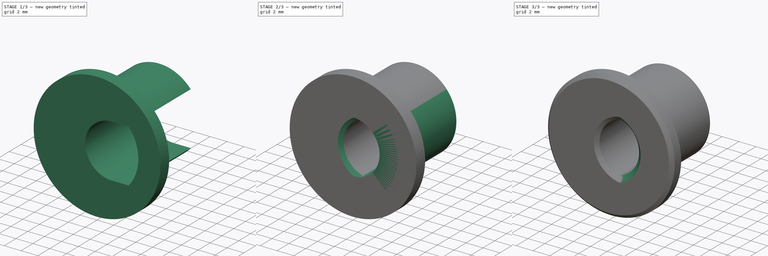
[diagram: build sequence overview — one tinted view per stage of 3, left to right]
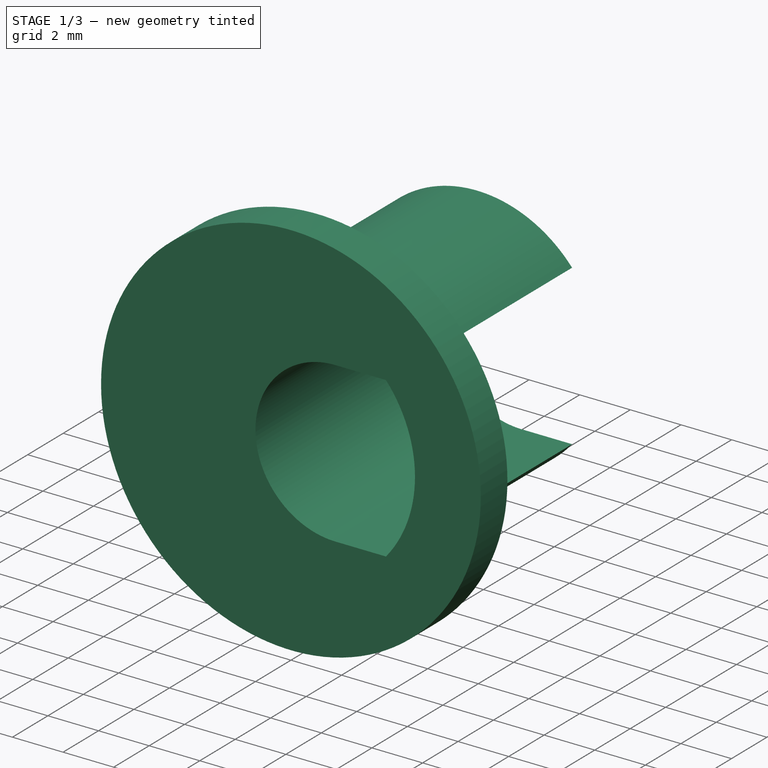
[diagram: stage 1 of 3 — iso view after this stage's code; geometry added in this stage tinted green]
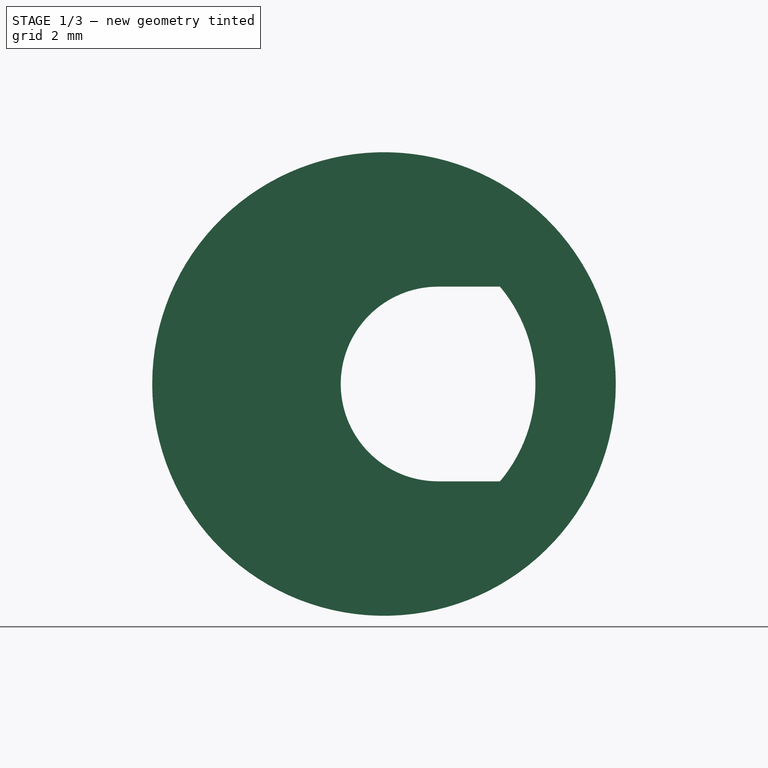
[diagram: stage 1 of 3 — front view after this stage's code; geometry added in this stage tinted green]
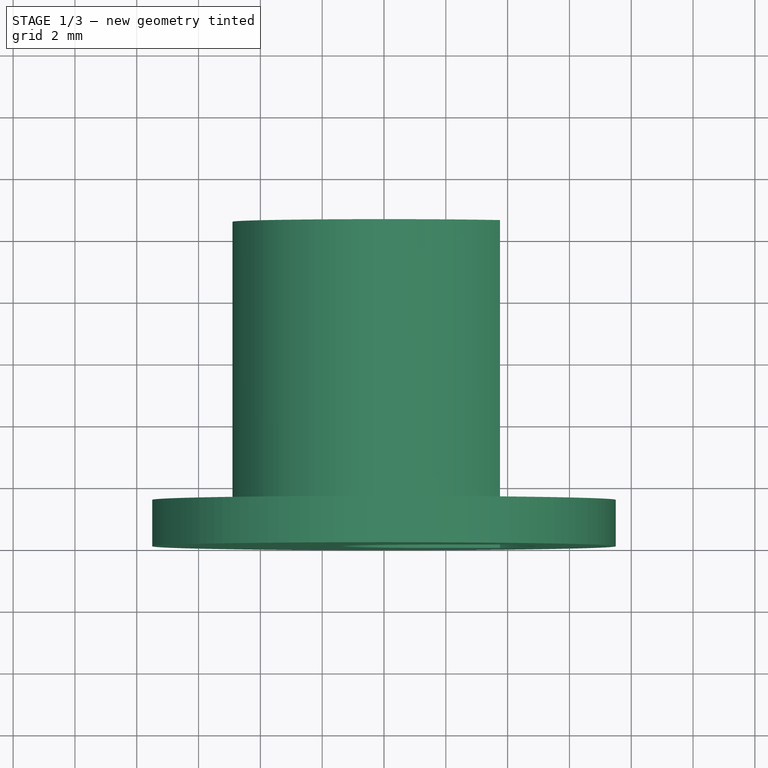
[diagram: stage 1 of 3 — top view after this stage's code; geometry added in this stage tinted green]
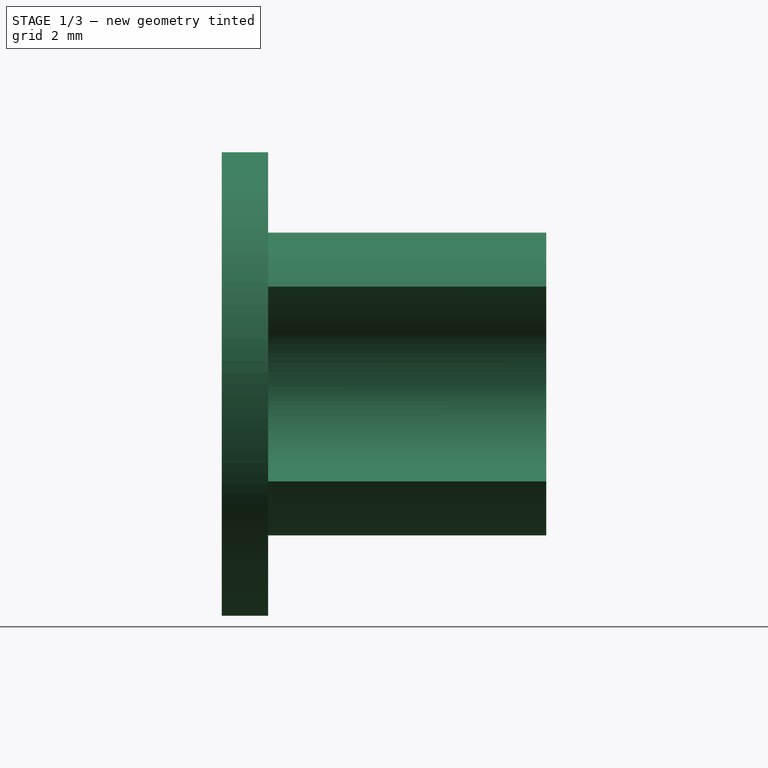
[diagram: stage 1 of 3 — right view after this stage's code; geometry added in this stage tinted green]
FCSTD DOCUMENT  (FreeCAD 0.19R24291 (Git))
Label: head-light-holder
License: All rights reserved
LicenseURL: http://en.wikipedia.org/wiki/All_rights_reserved
objects: PartDesign::Chamfer×3, Sketcher::SketchObject×2, PartDesign::Body×2, PartDesign::Revolution×1, Part::Feature×1, PartDesign::FeatureBase×1, PartDesign::Pocket×1
note: 16 computed .brp shape members not serialized (recipe doc carries the construction recipe); baked Part::Feature solids carry a one-line shape summary decoded from their .brp

FEATURE [PartDesign::Body] Body
  Group = -> [Sketch,Revolution,Chamfer,Chamfer001]
  Origin = -> Origin
  Tip = -> Chamfer001
FEATURE [Part::Feature] Fusion001  label="base"
  shape: bbox 15 x 10.5 x 15 mm, 5 faces (baked)
FEATURE [PartDesign::FeatureBase] BaseFeature
  BaseFeature = -> Fusion001
FEATURE [Sketcher::SketchObject] Sketch001
  ExternalGeometry = -> [BaseFeature]
  FullyConstrained = true
  MapMode = 5
  Placement = pos=(0,10.5,0) rot=(0,0.707107,0.707107;3.14159rad)
  Support = -> [BaseFeature]
  sketch-geometry (4):
    g0: ArcOfCircle CenterX=-1.75 CenterY=0 CenterZ=0 NormalX=0 NormalY=0 NormalZ=1 AngleXU=0 Radius=3.15 StartAngle=4.71239 EndAngle=7.85398
    g1: ArcOfCircle CenterX=0 CenterY=0 CenterZ=0 NormalX=0 NormalY=0 NormalZ=1 AngleXU=0 Radius=4.9 StartAngle=2.44337 EndAngle=3.83982
    g2: LineSegment StartX=-3.75333 StartY=3.15 StartZ=0 EndX=-1.75 EndY=3.15 EndZ=0
    g3: LineSegment StartX=-3.75333 StartY=-3.15 StartZ=0 EndX=-1.75 EndY=-3.15 EndZ=0
  constraints (13):
    c: PointOnObject(g0,g-1)
    c: Tangent(g0,g-3)
    c: Radius(g0) = 3.15
    c: Coincident(g1,g-1)
    c: PointOnObject(g1,g-3)
    c: Coincident(g2,g1)
    c: Coincident(g3,g1)
    c: Vertical(g3,g0)
    c: Vertical(g0,g2)
    c: Horizontal(g2)
    c: Horizontal(g3)
    c: Coincident(g0,g2)
    c: Coincident(g0,g3)
FEATURE [PartDesign::Pocket] Pocket
  BaseFeature = -> BaseFeature
  Length = 5
  Length2 = 100
  Profile = -> Sketch001
  Type = 1
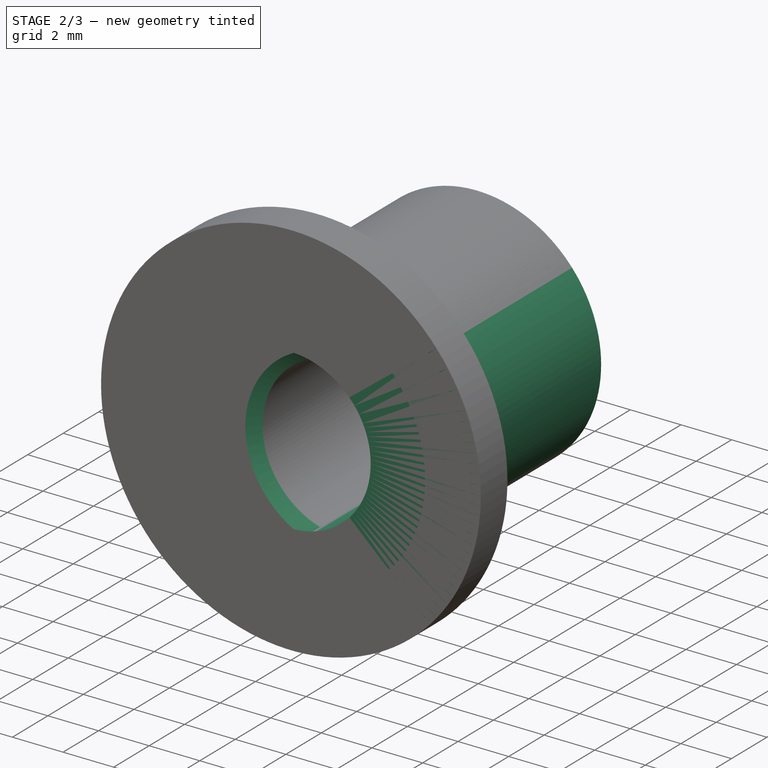
[diagram: stage 2 of 3 — iso view after this stage's code; geometry added in this stage tinted green]
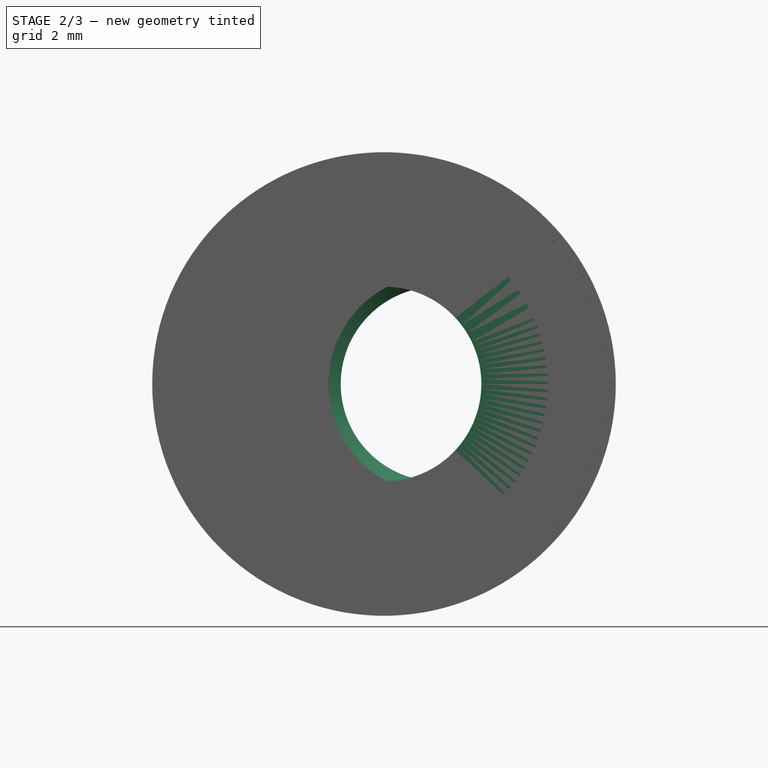
[diagram: stage 2 of 3 — front view after this stage's code; geometry added in this stage tinted green]
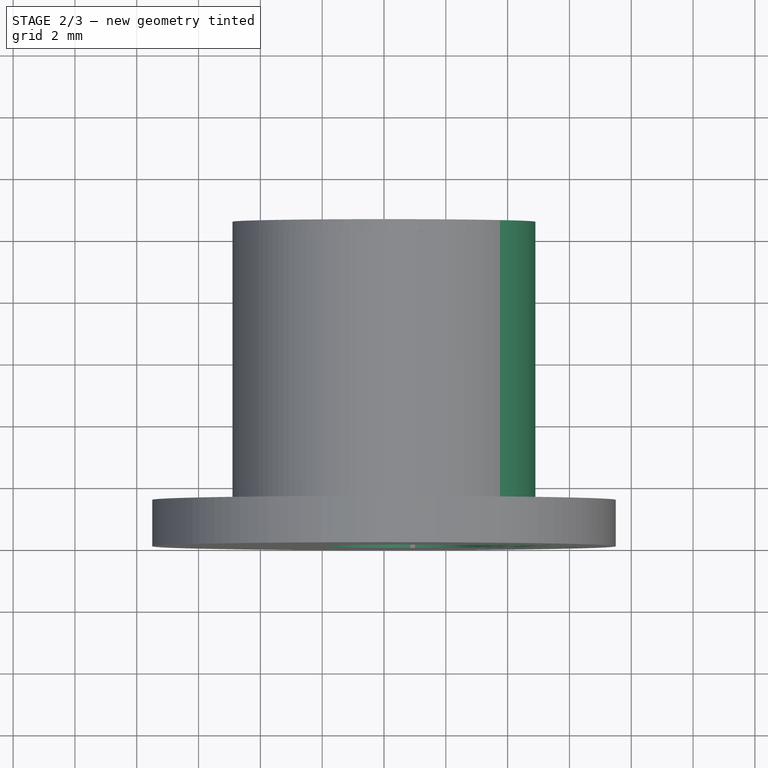
[diagram: stage 2 of 3 — top view after this stage's code; geometry added in this stage tinted green]
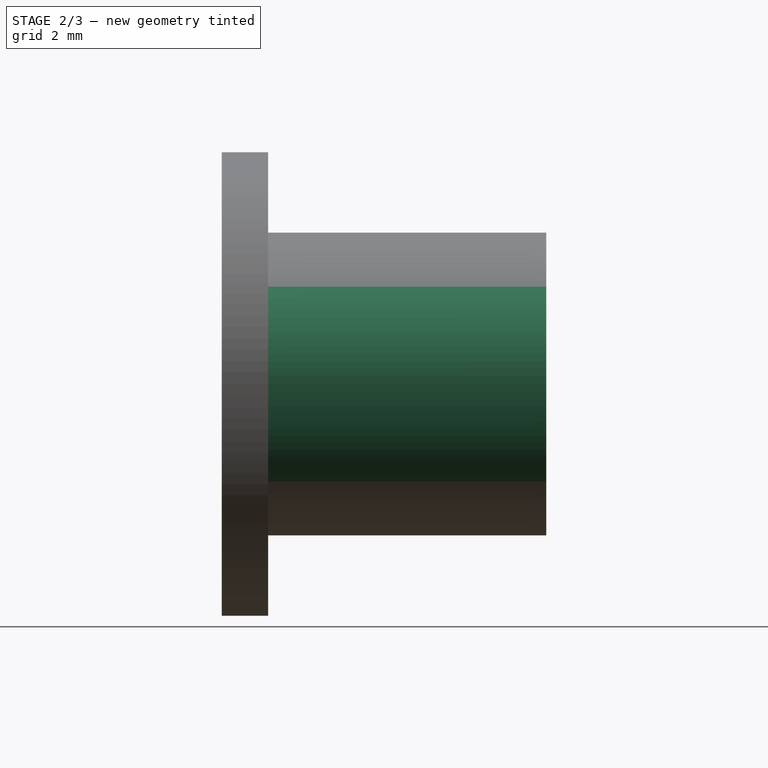
[diagram: stage 2 of 3 — right view after this stage's code; geometry added in this stage tinted green]
FEATURE [Sketcher::SketchObject] Sketch
  FullyConstrained = true
  MapMode = 5
  Support = -> [XY_Plane]
  sketch-geometry (6):
    g0: LineSegment StartX=-3.15 StartY=10.5 StartZ=0 EndX=-4.9 EndY=10.5 EndZ=0
    g1: LineSegment StartX=-4.9 StartY=10.5 StartZ=0 EndX=-4.9 EndY=1.5 EndZ=0
    g2: LineSegment StartX=-4.9 StartY=1.5 StartZ=0 EndX=-7.5 EndY=1.5 EndZ=0
    g3: LineSegment StartX=-7.5 StartY=1.5 StartZ=0 EndX=-7.5 EndY=0 EndZ=0
    g4: LineSegment StartX=-7.5 StartY=0 StartZ=0 EndX=-3.15 EndY=0 EndZ=0
    g5: LineSegment StartX=-3.15 StartY=0 StartZ=0 EndX=-3.15 EndY=10.5 EndZ=0
  constraints (18):
    c: Horizontal(g0)
    c: Coincident(g0,g1)
    c: Vertical(g1)
    c: Coincident(g1,g2)
    c: Horizontal(g2)
    c: Coincident(g2,g3)
    c: PointOnObject(g3,g-1)
    c: Coincident(g3,g4)
    c: PointOnObject(g4,g-1)
    c: Coincident(g5,g0)
    c: Vertical(g5)
    c: DistanceX(g0,g-1) = 4.9
    c: DistanceX(g0,g-1) = 3.15
    c: Vertical(g3)
    c: DistanceX(g3,g-1) = 7.5
    c: DistanceY(g3,g3) = 1.5
    c: DistanceY(g1,g1) = 9
    c: Coincident(g4,g5)
FEATURE [PartDesign::Revolution] Revolution
  Angle = 360
  Axis = (0,1,0)
  Base = (0,0,0)
  Profile = -> Sketch
  ReferenceAxis = -> Sketch [V_Axis]
FEATURE [PartDesign::Chamfer] Chamfer002
  Angle = 45
  Base = -> Pocket [Edge3,Edge6,Face5,Face10]
  BaseFeature = -> Pocket
  ChamferType = 0
  FlipDirection = false
  Size = 0.4
  Size2 = 1
  SupportTransform = false
FEATURE [PartDesign::Body] Body001
  BaseFeature = -> Fusion001
  Group = -> [BaseFeature,Sketch001,Pocket,Chamfer002]
  Origin = -> Origin001
  Tip = -> Chamfer002
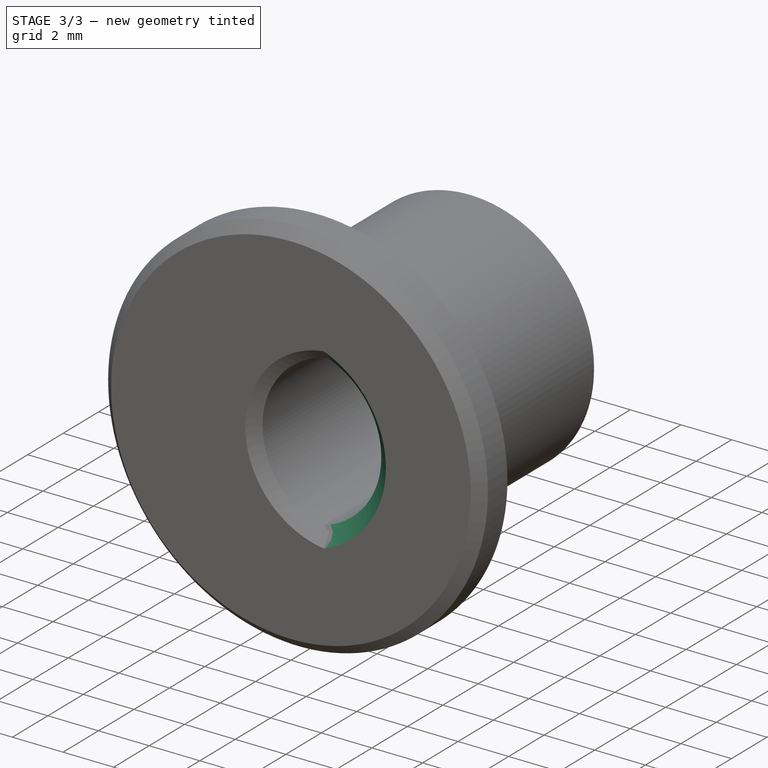
[diagram: stage 3 of 3 — iso view after this stage's code; geometry added in this stage tinted green]
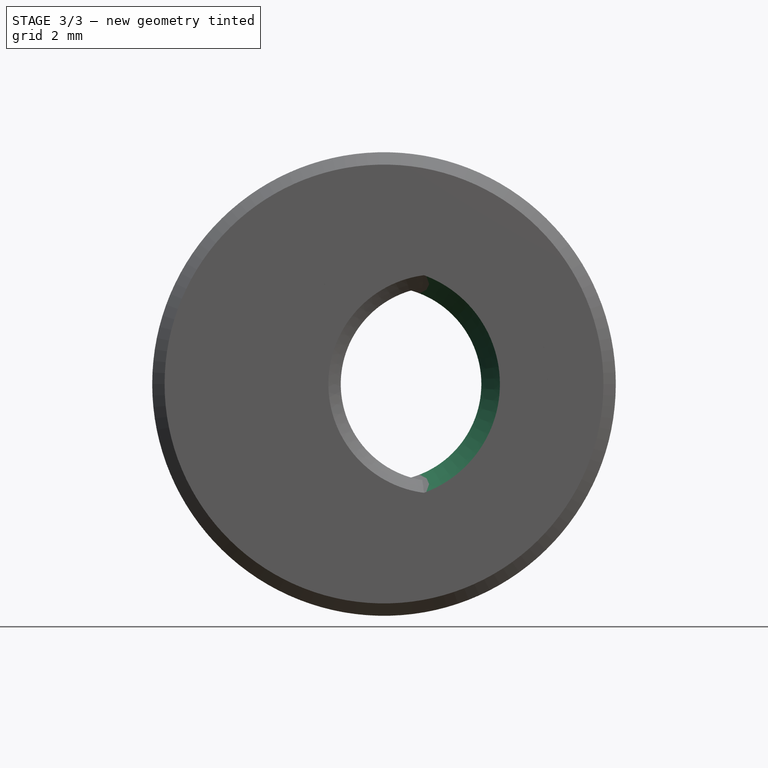
[diagram: stage 3 of 3 — front view after this stage's code; geometry added in this stage tinted green]
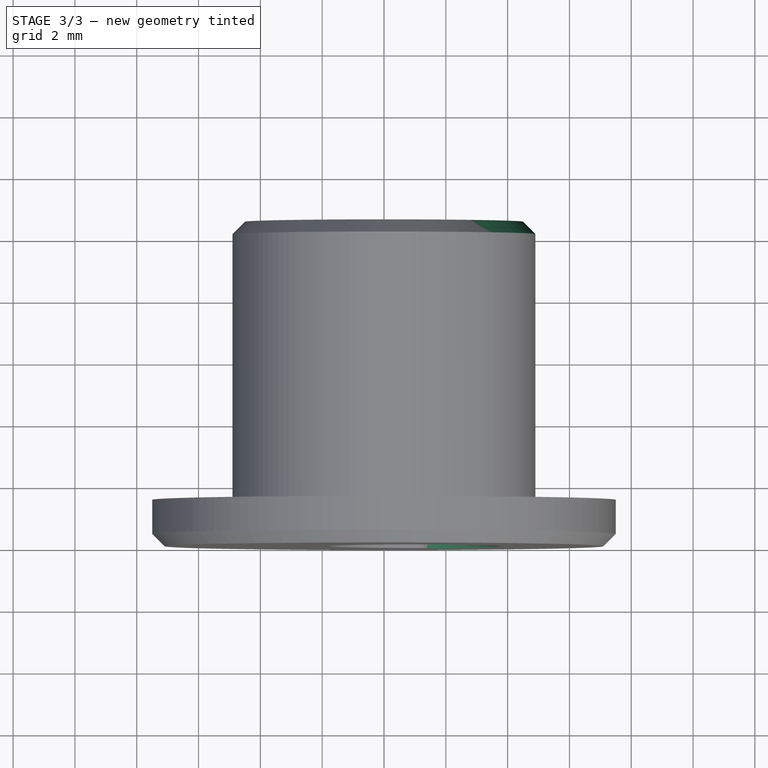
[diagram: stage 3 of 3 — top view after this stage's code; geometry added in this stage tinted green]
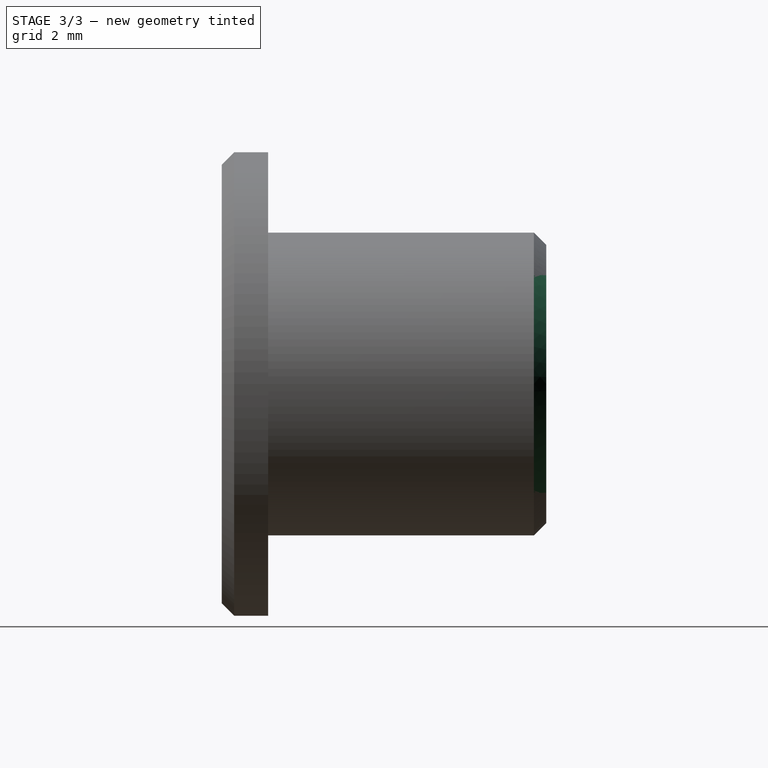
[diagram: stage 3 of 3 — right view after this stage's code; geometry added in this stage tinted green]
FEATURE [PartDesign::Chamfer] Chamfer
  Angle = 45
  Base = -> Revolution [Edge8]
  BaseFeature = -> Revolution
  ChamferType = 0
  FlipDirection = false
  Size = 0.6
  Size2 = 1
  SupportTransform = false
FEATURE [PartDesign::Chamfer] Chamfer001
  Angle = 45
  Base = -> Chamfer [Edge2,Edge10]
  BaseFeature = -> Chamfer
  ChamferType = 0
  FlipDirection = false
  Size = 0.4
  Size2 = 1
  SupportTransform = false
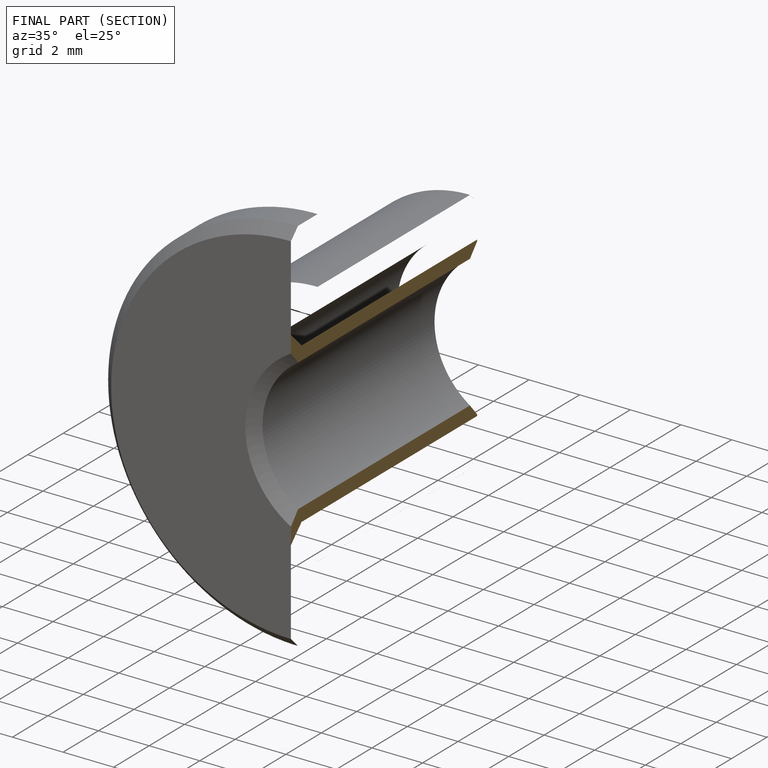
[diagram: finished part — half-section view (interior)]
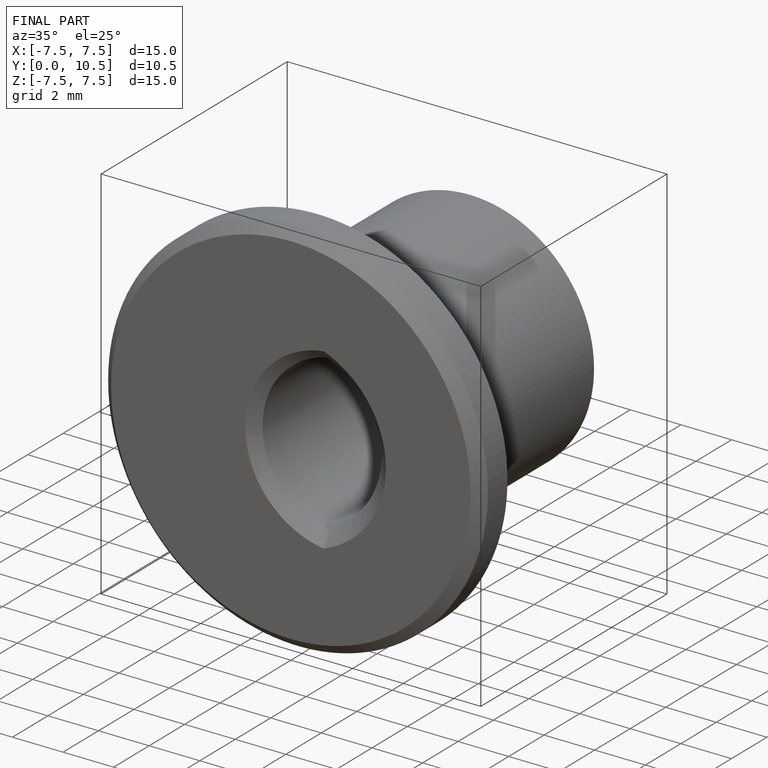
[diagram: finished part — iso view with bounding-box wireframe]
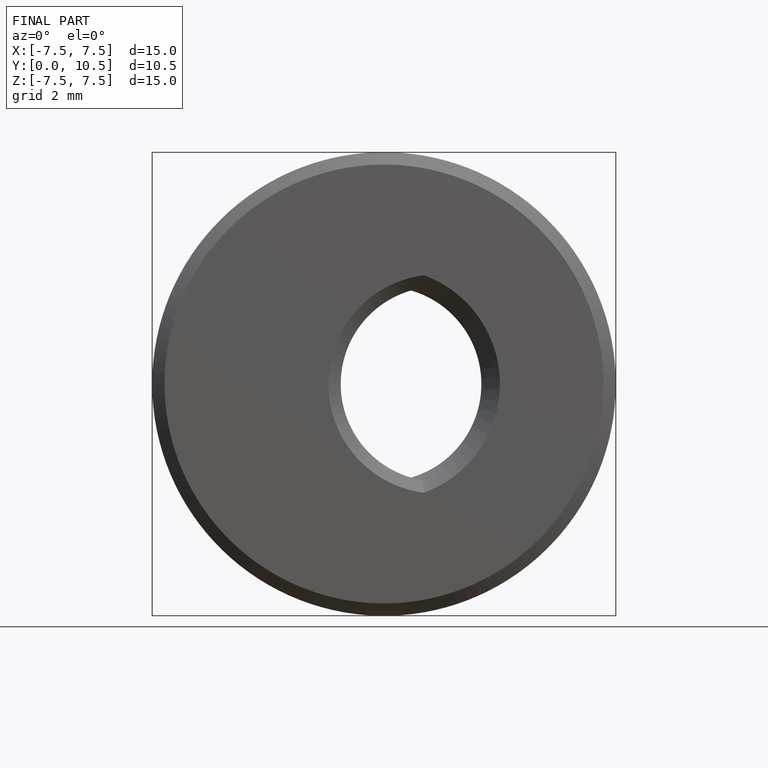
[diagram: finished part — front view with bounding-box wireframe]
